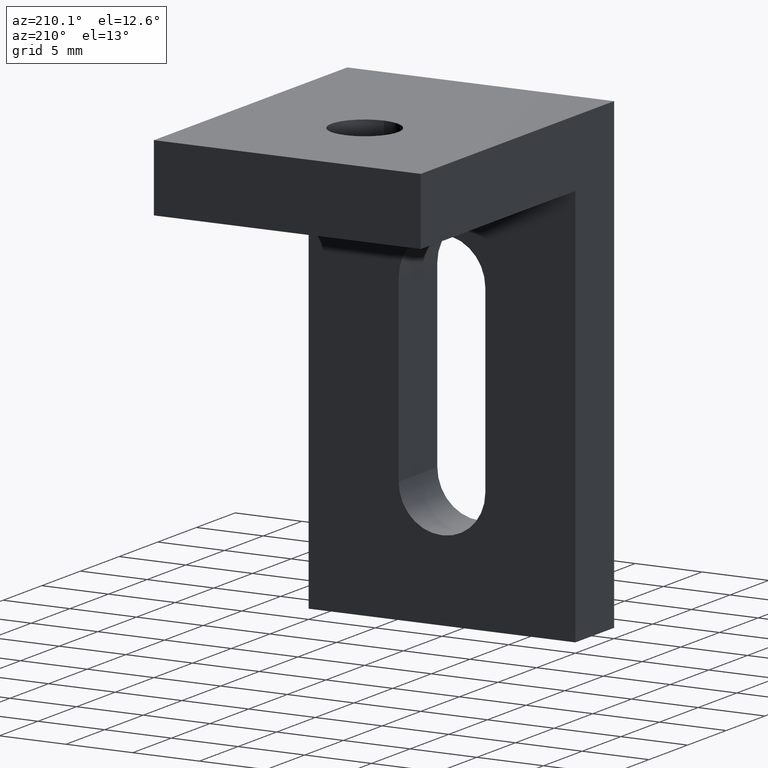
[diagram: clean part render]
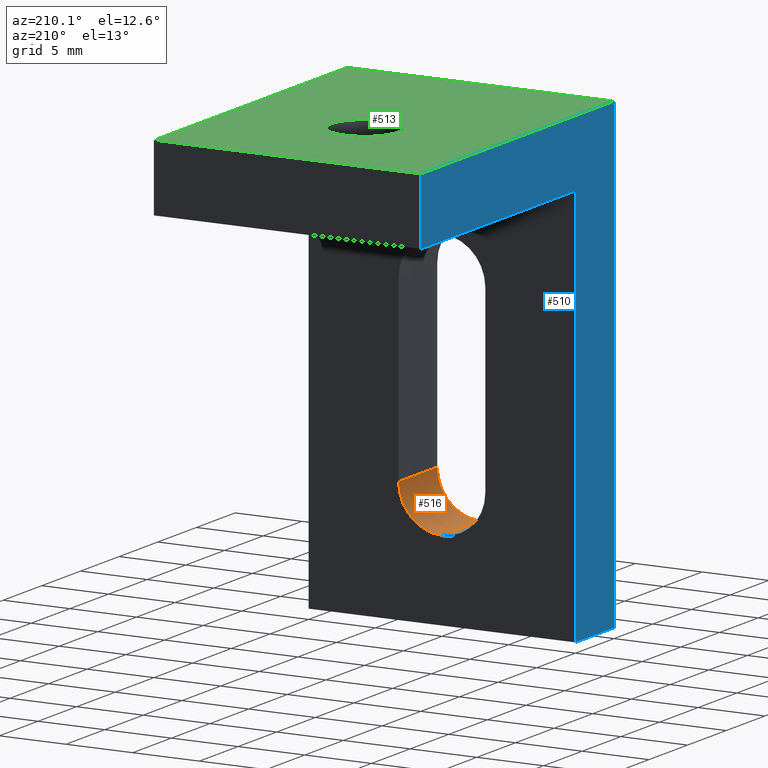
[diagram: same view with three faces highlighted in distinct colors, each labeled with its STEP entity id]
A machine part, auxiliary view with three faces highlighted in distinct colors.
Their STEP definitions:

[orange] entity #516 — the highlighted cylindrical surface (partial cylindrical patch) has radius 3.2 mm, axis along (0, -1, -0).
#16 = CARTESIAN_POINT ( 'NONE',  ( 10.05000000000000600, -8.673617379884035500E-016, -29.00000000000000700 ) ) ;
#26 = CARTESIAN_POINT ( 'NONE',  ( 13.25000000000000900, -1.422473250300982000E-015, -25.80000000000000800 ) ) ;
#35 = VERTEX_POINT ( 'NONE', #59 ) ;
#40 = VERTEX_POINT ( 'NONE', #61 ) ;
#43 = VERTEX_POINT ( 'NONE', #26 ) ;
#50 = VERTEX_POINT ( 'NONE', #16 ) ;
#59 = CARTESIAN_POINT ( 'NONE',  ( 13.25000000000000900, 4.999999999999999100, -25.80000000000000800 ) ) ;
#61 = CARTESIAN_POINT ( 'NONE',  ( 10.05000000000000600, 5.000000000000000000, -29.00000000000000700 ) ) ;
#71 = CARTESIAN_POINT ( 'NONE',  ( 13.25000000000000900, -1.396039368762288100E-015, -25.80000000000000800 ) ) ;
#87 = DIRECTION ( 'NONE',  ( -0.0000000000000000000, -1.000000000000000000, -1.652117596168388200E-016 ) ) ;
#133 = DIRECTION ( 'NONE',  ( 0.0000000000000000000, -1.000000000000000000, -1.445602896647339200E-016 ) ) ;
#137 = CARTESIAN_POINT ( 'NONE',  ( 10.05000000000000800, 4.999999999999998200, -25.80000000000000800 ) ) ;
#139 = DIRECTION ( 'NONE',  ( 0.0000000000000000000, 2.710505431213759600E-016, -1.000000000000000000 ) ) ;
#159 = DIRECTION ( 'NONE',  ( 0.0000000000000000000, -1.000000000000000000, -1.652117596168388200E-016 ) ) ;
#161 = CARTESIAN_POINT ( 'NONE',  ( 10.05000000000000800, -1.396039368762287500E-015, -25.80000000000000800 ) ) ;
#165 = DIRECTION ( 'NONE',  ( 0.0000000000000000000, 1.652117596168387500E-016, -1.000000000000000000 ) ) ;
#171 = FACE_OUTER_BOUND ( 'NONE', #389, .T. ) ;
#200 = ORIENTED_EDGE ( 'NONE', *, *, #565, .F. ) ;
#229 = ORIENTED_EDGE ( 'NONE', *, *, #574, .F. ) ;
#241 = ORIENTED_EDGE ( 'NONE', *, *, #554, .F. ) ;
#252 = CIRCLE ( 'NONE', #442, 3.200000000000001500 ) ;
#267 = CIRCLE ( 'NONE', #444, 3.200000000000001500 ) ;
#268 = VECTOR ( 'NONE', #489, 1000.000000000000000 ) ;
#276 = CYLINDRICAL_SURFACE ( 'NONE', #445, 3.200000000000001500 ) ;
#302 = ORIENTED_EDGE ( 'NONE', *, *, #493, .F. ) ;
#334 = VECTOR ( 'NONE', #87, 1000.000000000000000 ) ;
#357 = LINE ( 'NONE', #487, #268 ) ;
#389 = EDGE_LOOP ( 'NONE', ( #200, #302, #241, #229 ) ) ;
#396 = LINE ( 'NONE', #71, #334 ) ;
#442 = AXIS2_PLACEMENT_3D ( 'NONE', #137, #133, #139 ) ;
#444 = AXIS2_PLACEMENT_3D ( 'NONE', #454, #483, #460 ) ;
#445 = AXIS2_PLACEMENT_3D ( 'NONE', #161, #159, #165 ) ;
#454 = CARTESIAN_POINT ( 'NONE',  ( 10.05000000000000800, 0.0000000000000000000, -25.80000000000000800 ) ) ;
#460 = DIRECTION ( 'NONE',  ( 0.0000000000000000000, 0.0000000000000000000, 1.000000000000000000 ) ) ;
#483 = DIRECTION ( 'NONE',  ( -0.0000000000000000000, 1.000000000000000000, 0.0000000000000000000 ) ) ;
#487 = CARTESIAN_POINT ( 'NONE',  ( 10.05000000000000600, 5.000000000000000000, -29.00000000000000400 ) ) ;
#489 = DIRECTION ( 'NONE',  ( 0.0000000000000000000, 1.000000000000000000, 1.652117596168388200E-016 ) ) ;
#493 = EDGE_CURVE ( 'NONE', #35, #43, #396, .T. ) ;
#516 = ADVANCED_FACE ( 'NONE', ( #171 ), #276, .F. ) ;
#554 = EDGE_CURVE ( 'NONE', #40, #35, #252, .T. ) ;
#565 = EDGE_CURVE ( 'NONE', #43, #50, #267, .T. ) ;
#574 = EDGE_CURVE ( 'NONE', #50, #40, #357, .T. ) ;

[blue] entity #510 — the highlighted planar face has unit normal (-1, 0, 0).
#3 = CARTESIAN_POINT ( 'NONE',  ( 0.0000000000000000000, 0.0000000000000000000, 0.0000000000000000000 ) ) ;
#14 = CARTESIAN_POINT ( 'NONE',  ( 0.0000000000000000000, 25.00000000000000000, -1.850437868103648700E-015 ) ) ;
#17 = VERTEX_POINT ( 'NONE', #70 ) ;
#25 = VERTEX_POINT ( 'NONE', #3 ) ;
#28 = CARTESIAN_POINT ( 'NONE',  ( 0.0000000000000000000, 4.999999999999995600, -5.000000000000000900 ) ) ;
#32 = DIRECTION ( 'NONE',  ( 0.0000000000000000000, 0.0000000000000000000, 1.000000000000000000 ) ) ;
#52 = CARTESIAN_POINT ( 'NONE',  ( 0.0000000000000000000, 5.000000000000000000, -35.00000000000000000 ) ) ;
#54 = CARTESIAN_POINT ( 'NONE',  ( 0.0000000000000000000, 25.00000000000000000, -5.000000000000000000 ) ) ;
#64 = CARTESIAN_POINT ( 'NONE',  ( 0.0000000000000000000, 25.00000000000000000, -5.000000000000000000 ) ) ;
#65 = VERTEX_POINT ( 'NONE', #64 ) ;
#70 = CARTESIAN_POINT ( 'NONE',  ( 0.0000000000000000000, 0.0000000000000000000, -35.00000000000000000 ) ) ;
#73 = DIRECTION ( 'NONE',  ( 0.0000000000000000000, -1.445602896647339200E-016, 1.000000000000000000 ) ) ;
#76 = VERTEX_POINT ( 'NONE', #52 ) ;
#78 = VERTEX_POINT ( 'NONE', #28 ) ;
#80 = CARTESIAN_POINT ( 'NONE',  ( 0.0000000000000000000, 5.000000000000000000, -35.00000000000000000 ) ) ;
#88 = VERTEX_POINT ( 'NONE', #14 ) ;
#118 = DIRECTION ( 'NONE',  ( -1.000000000000000000, 0.0000000000000000000, 0.0000000000000000000 ) ) ;
#119 = CARTESIAN_POINT ( 'NONE',  ( 0.0000000000000000000, 25.00000000000000000, -35.00000000000000000 ) ) ;
#124 = PLANE ( 'NONE',  #448 ) ;
#154 = DIRECTION ( 'NONE',  ( 0.0000000000000000000, 0.0000000000000000000, 1.000000000000000000 ) ) ;
#168 = VECTOR ( 'NONE', #480, 1000.000000000000000 ) ;
#206 = ORIENTED_EDGE ( 'NONE', *, *, #570, .F. ) ;
#221 = LINE ( 'NONE', #538, #377 ) ;
#224 = FACE_OUTER_BOUND ( 'NONE', #381, .T. ) ;
#228 = LINE ( 'NONE', #466, #310 ) ;
#250 = ORIENTED_EDGE ( 'NONE', *, *, #634, .F. ) ;
#256 = ORIENTED_EDGE ( 'NONE', *, *, #498, .F. ) ;
#260 = VECTOR ( 'NONE', #469, 1000.000000000000000 ) ;
#278 = LINE ( 'NONE', #54, #394 ) ;
#291 = ORIENTED_EDGE ( 'NONE', *, *, #644, .F. ) ;
#308 = LINE ( 'NONE', #459, #168 ) ;
#310 = VECTOR ( 'NONE', #476, 1000.000000000000000 ) ;
#351 = ORIENTED_EDGE ( 'NONE', *, *, #495, .F. ) ;
#354 = LINE ( 'NONE', #479, #260 ) ;
#361 = ORIENTED_EDGE ( 'NONE', *, *, #568, .F. ) ;
#367 = LINE ( 'NONE', #80, #397 ) ;
#377 = VECTOR ( 'NONE', #547, 1000.000000000000000 ) ;
#381 = EDGE_LOOP ( 'NONE', ( #351, #206, #256, #250, #361, #291 ) ) ;
#394 = VECTOR ( 'NONE', #32, 1000.000000000000000 ) ;
#397 = VECTOR ( 'NONE', #73, 1000.000000000000000 ) ;
#448 = AXIS2_PLACEMENT_3D ( 'NONE', #119, #118, #154 ) ;
#459 = CARTESIAN_POINT ( 'NONE',  ( 0.0000000000000000000, 0.0000000000000000000, 0.0000000000000000000 ) ) ;
#466 = CARTESIAN_POINT ( 'NONE',  ( 0.0000000000000000000, 0.0000000000000000000, -35.00000000000000000 ) ) ;
#469 = DIRECTION ( 'NONE',  ( 0.0000000000000000000, 1.000000000000000000, 4.336808689942017100E-017 ) ) ;
#476 = DIRECTION ( 'NONE',  ( 0.0000000000000000000, 1.000000000000000000, 0.0000000000000000000 ) ) ;
#479 = CARTESIAN_POINT ( 'NONE',  ( 0.0000000000000000000, 4.999999999999995600, -5.000000000000000900 ) ) ;
#480 = DIRECTION ( 'NONE',  ( 0.0000000000000000000, 0.0000000000000000000, -1.000000000000000000 ) ) ;
#495 = EDGE_CURVE ( 'NONE', #65, #88, #278, .T. ) ;
#498 = EDGE_CURVE ( 'NONE', #76, #78, #367, .T. ) ;
#510 = ADVANCED_FACE ( 'NONE', ( #224 ), #124, .T. ) ;
#538 = CARTESIAN_POINT ( 'NONE',  ( 0.0000000000000000000, 25.00000000000000000, -1.850437868103648700E-015 ) ) ;
#547 = DIRECTION ( 'NONE',  ( 0.0000000000000000000, -1.000000000000000000, 7.401751472414593800E-017 ) ) ;
#568 = EDGE_CURVE ( 'NONE', #25, #17, #308, .T. ) ;
#570 = EDGE_CURVE ( 'NONE', #78, #65, #354, .T. ) ;
#634 = EDGE_CURVE ( 'NONE', #17, #76, #228, .T. ) ;
#644 = EDGE_CURVE ( 'NONE', #88, #25, #221, .T. ) ;

[green] entity #513 — the highlighted planar face has unit normal (0, -0, -1).
#3 = CARTESIAN_POINT ( 'NONE',  ( 0.0000000000000000000, 0.0000000000000000000, 0.0000000000000000000 ) ) ;
#6 = CARTESIAN_POINT ( 'NONE',  ( 9.999999999999998200, 12.49999999999999800, 1.528208776455758600E-015 ) ) ;
#11 = CARTESIAN_POINT ( 'NONE',  ( 20.00000000000000000, 25.00000000000000000, -1.850437868103648700E-015 ) ) ;
#13 = CARTESIAN_POINT ( 'NONE',  ( 20.00000000000000000, 0.0000000000000000000, 0.0000000000000000000 ) ) ;
#14 = CARTESIAN_POINT ( 'NONE',  ( 0.0000000000000000000, 25.00000000000000000, -1.850437868103648700E-015 ) ) ;
#19 = VERTEX_POINT ( 'NONE', #13 ) ;
#25 = VERTEX_POINT ( 'NONE', #3 ) ;
#27 = DIRECTION ( 'NONE',  ( -1.000000000000000000, -0.0000000000000000000, -0.0000000000000000000 ) ) ;
#36 = VERTEX_POINT ( 'NONE', #6 ) ;
#48 = CARTESIAN_POINT ( 'NONE',  ( 20.00000000000000000, 25.00000000000000000, -1.850437868103648700E-015 ) ) ;
#60 = VERTEX_POINT ( 'NONE', #11 ) ;
#67 = VERTEX_POINT ( 'NONE', #75 ) ;
#75 = CARTESIAN_POINT ( 'NONE',  ( 9.999999999999998200, 17.49999999999999600, 1.941238175497855500E-015 ) ) ;
#88 = VERTEX_POINT ( 'NONE', #14 ) ;
#102 = DIRECTION ( 'NONE',  ( 0.0000000000000000000, 1.000000000000000000, -7.401751472414593800E-017 ) ) ;
#103 = CARTESIAN_POINT ( 'NONE',  ( 20.00000000000000000, 25.00000000000000000, -1.850437868103648700E-015 ) ) ;
#104 = DIRECTION ( 'NONE',  ( 0.0000000000000000000, -7.401751472414593800E-017, -1.000000000000000000 ) ) ;
#109 = PLANE ( 'NONE',  #443 ) ;
#184 = CIRCLE ( 'NONE', #615, 2.499999999999998700 ) ;
#190 = ORIENTED_EDGE ( 'NONE', *, *, #651, .F. ) ;
#192 = VECTOR ( 'NONE', #623, 1000.000000000000000 ) ;
#196 = LINE ( 'NONE', #543, #375 ) ;
#207 = ORIENTED_EDGE ( 'NONE', *, *, #572, .T. ) ;
#217 = ORIENTED_EDGE ( 'NONE', *, *, #644, .T. ) ;
#221 = LINE ( 'NONE', #538, #377 ) ;
#258 = CIRCLE ( 'NONE', #603, 2.499999999999998700 ) ;
#263 = FACE_OUTER_BOUND ( 'NONE', #322, .T. ) ;
#269 = ORIENTED_EDGE ( 'NONE', *, *, #494, .T. ) ;
#321 = LINE ( 'NONE', #626, #192 ) ;
#322 = EDGE_LOOP ( 'NONE', ( #217, #349, #190, #269 ) ) ;
#327 = EDGE_LOOP ( 'NONE', ( #373, #207 ) ) ;
#349 = ORIENTED_EDGE ( 'NONE', *, *, #639, .F. ) ;
#373 = ORIENTED_EDGE ( 'NONE', *, *, #643, .T. ) ;
#375 = VECTOR ( 'NONE', #545, 1000.000000000000000 ) ;
#377 = VECTOR ( 'NONE', #547, 1000.000000000000000 ) ;
#391 = FACE_BOUND ( 'NONE', #327, .T. ) ;
#392 = LINE ( 'NONE', #48, #393 ) ;
#393 = VECTOR ( 'NONE', #27, 1000.000000000000000 ) ;
#443 = AXIS2_PLACEMENT_3D ( 'NONE', #103, #104, #102 ) ;
#465 = DIRECTION ( 'NONE',  ( 0.0000000000000000000, 8.260587980841936300E-017, -1.000000000000000000 ) ) ;
#470 = CARTESIAN_POINT ( 'NONE',  ( 9.999999999999998200, 15.00000000000000000, 1.734723475976807100E-015 ) ) ;
#490 = DIRECTION ( 'NONE',  ( 0.0000000000000000000, 1.000000000000000000, 8.260587980841943700E-017 ) ) ;
#494 = EDGE_CURVE ( 'NONE', #60, #88, #392, .T. ) ;
#513 = ADVANCED_FACE ( 'NONE', ( #391, #263 ), #109, .F. ) ;
#528 = DIRECTION ( 'NONE',  ( 0.0000000000000000000, 8.260587980841936300E-017, -1.000000000000000000 ) ) ;
#535 = CARTESIAN_POINT ( 'NONE',  ( 9.999999999999998200, 15.00000000000000000, 1.734723475976807100E-015 ) ) ;
#538 = CARTESIAN_POINT ( 'NONE',  ( 0.0000000000000000000, 25.00000000000000000, -1.850437868103648700E-015 ) ) ;
#541 = DIRECTION ( 'NONE',  ( 0.0000000000000000000, 1.000000000000000000, 8.260587980841943700E-017 ) ) ;
#543 = CARTESIAN_POINT ( 'NONE',  ( 20.00000000000000000, 0.0000000000000000000, 0.0000000000000000000 ) ) ;
#545 = DIRECTION ( 'NONE',  ( -1.000000000000000000, -0.0000000000000000000, -0.0000000000000000000 ) ) ;
#547 = DIRECTION ( 'NONE',  ( 0.0000000000000000000, -1.000000000000000000, 7.401751472414593800E-017 ) ) ;
#572 = EDGE_CURVE ( 'NONE', #36, #67, #184, .T. ) ;
#603 = AXIS2_PLACEMENT_3D ( 'NONE', #535, #528, #541 ) ;
#615 = AXIS2_PLACEMENT_3D ( 'NONE', #470, #465, #490 ) ;
#623 = DIRECTION ( 'NONE',  ( 0.0000000000000000000, -1.000000000000000000, 7.401751472414593800E-017 ) ) ;
#626 = CARTESIAN_POINT ( 'NONE',  ( 20.00000000000000000, 25.00000000000000000, -1.850437868103648700E-015 ) ) ;
#639 = EDGE_CURVE ( 'NONE', #19, #25, #196, .T. ) ;
#643 = EDGE_CURVE ( 'NONE', #67, #36, #258, .T. ) ;
#644 = EDGE_CURVE ( 'NONE', #88, #25, #221, .T. ) ;
#651 = EDGE_CURVE ( 'NONE', #60, #19, #321, .T. ) ;